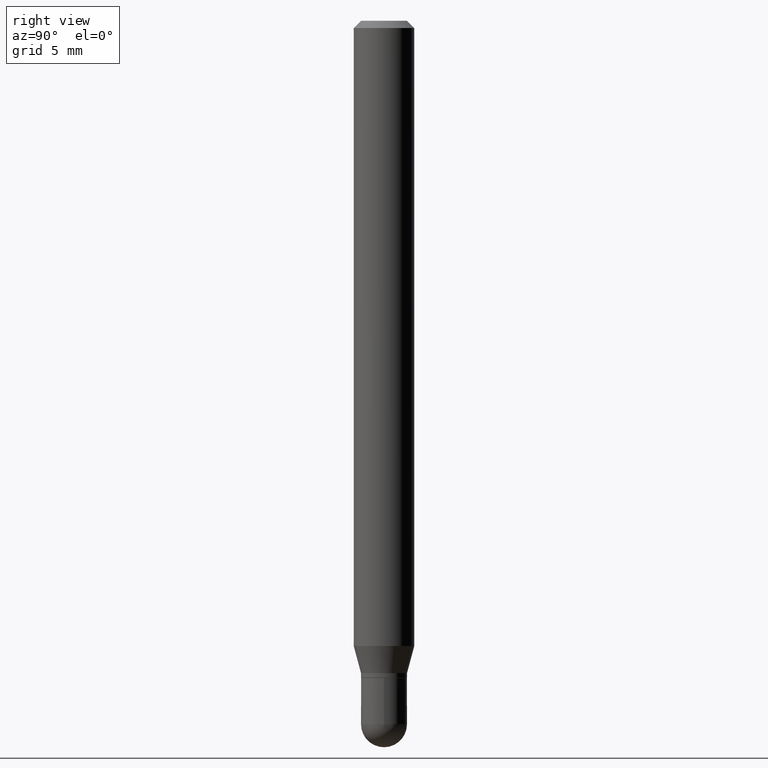
[diagram: clean part render]
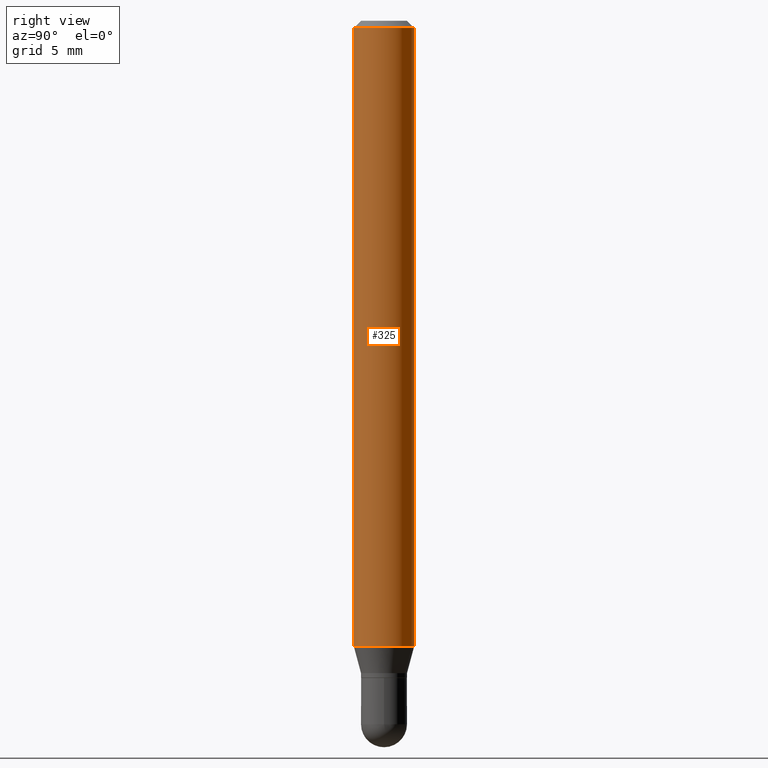
[diagram: same view with one face highlighted and labeled with its STEP entity id]
A machine part, right view. The second image highlights one B-rep face of the part: STEP entity #325.
In plain terms, the highlighted cylindrical surface (edge-blend (fillet) strip) has radius 1.5875 mm, axis along (-0, 0, 1).
Its self-contained STEP definition (entity closure, byte-faithful):
#17 = CARTESIAN_POINT ( 'NONE',  ( -4.364351673553598192E-16, -0.06250000000000446865, -1.291019237886467108 ) ) ;
#19 = CARTESIAN_POINT ( 'NONE',  ( -4.364351673553912750E-16, -0.06250000000000005551, -0.01500000000000011047 ) ) ;
#23 = CYLINDRICAL_SURFACE ( 'NONE', #145, 0.06250000000000000000 ) ;
#42 = EDGE_CURVE ( 'NONE', #47, #335, #152, .T. ) ;
#47 = VERTEX_POINT ( 'NONE', #17 ) ;
#65 = CARTESIAN_POINT ( 'NONE',  ( 3.668238637977385892E-31, -5.237171272350528635E-17, -0.01500000000000032904 ) ) ;
#74 = EDGE_CURVE ( 'NONE', #335, #243, #388, .T. ) ;
#76 = DIRECTION ( 'NONE',  ( -2.445492425318203883E-29, 3.491447514900276167E-15, 1.000000000000000000 ) ) ;
#104 = DIRECTION ( 'NONE',  ( -2.445492425318203883E-29, 3.491447514900276167E-15, 1.000000000000000000 ) ) ;
#108 = EDGE_CURVE ( 'NONE', #130, #243, #442, .T. ) ;
#113 = CARTESIAN_POINT ( 'NONE',  ( 3.157177767191435444E-29, -4.507525909807155110E-15, -1.291019237886467330 ) ) ;
#130 = VERTEX_POINT ( 'NONE', #19 ) ;
#140 = ORIENTED_EDGE ( 'NONE', *, *, #42, .T. ) ;
#143 = DIRECTION ( 'NONE',  ( -2.445492425318203603E-29, 3.491447514900276167E-15, 1.000000000000000000 ) ) ;
#145 = AXIS2_PLACEMENT_3D ( 'NONE', #150, #215, #462 ) ;
#150 = CARTESIAN_POINT ( 'NONE',  ( 0.000000000000000000, 0.000000000000000000, 0.000000000000000000 ) ) ;
#152 = CIRCLE ( 'NONE', #238, 0.06250000000000000000 ) ;
#154 = CARTESIAN_POINT ( 'NONE',  ( -4.364351673553916201E-16, -0.06250000000000000000, 2.182154696812672604E-16 ) ) ;
#187 = CARTESIAN_POINT ( 'NONE',  ( 4.440892098500942692E-16, 0.06249999999999551747, -1.291019237886467552 ) ) ;
#215 = DIRECTION ( 'NONE',  ( -2.445492425318203603E-29, 3.491447514900276167E-15, 1.000000000000000000 ) ) ;
#216 = DIRECTION ( 'NONE',  ( -6.982962677686265922E-15, -1.000000000000000000, 4.370956789862821150E-15 ) ) ;
#218 = DIRECTION ( 'NONE',  ( -2.445492425318203603E-29, 3.491447514900276167E-15, 1.000000000000000000 ) ) ;
#220 = LINE ( 'NONE', #154, #283 ) ;
#227 = CARTESIAN_POINT ( 'NONE',  ( 4.440892098500943678E-16, 0.06249999999999995837, -0.01500000000000054588 ) ) ;
#238 = AXIS2_PLACEMENT_3D ( 'NONE', #113, #143, #216 ) ;
#243 = VERTEX_POINT ( 'NONE', #227 ) ;
#283 = VECTOR ( 'NONE', #76, 39.37007874015748143 ) ;
#325 = ADVANCED_FACE ( 'NONE', ( #428 ), #23, .T. ) ;
#335 = VERTEX_POINT ( 'NONE', #187 ) ;
#336 = VECTOR ( 'NONE', #104, 39.37007874015748143 ) ;
#337 = ORIENTED_EDGE ( 'NONE', *, *, #108, .F. ) ;
#375 = AXIS2_PLACEMENT_3D ( 'NONE', #65, #218, #381 ) ;
#381 = DIRECTION ( 'NONE',  ( -6.982962677686265922E-15, -1.000000000000000000, 3.483106191921935554E-15 ) ) ;
#388 = LINE ( 'NONE', #468, #336 ) ;
#393 = EDGE_CURVE ( 'NONE', #47, #130, #220, .T. ) ;
#428 = FACE_OUTER_BOUND ( 'NONE', #452, .T. ) ;
#442 = CIRCLE ( 'NONE', #375, 0.06250000000000000000 ) ;
#450 = ORIENTED_EDGE ( 'NONE', *, *, #74, .T. ) ;
#452 = EDGE_LOOP ( 'NONE', ( #140, #450, #337, #485 ) ) ;
#462 = DIRECTION ( 'NONE',  ( -6.982962677686265922E-15, -1.000000000000000000, 3.491447514900276167E-15 ) ) ;
#468 = CARTESIAN_POINT ( 'NONE',  ( 4.440892098500625669E-16, 0.06250000000000000000, -2.182154696812672604E-16 ) ) ;
#485 = ORIENTED_EDGE ( 'NONE', *, *, #393, .F. ) ;